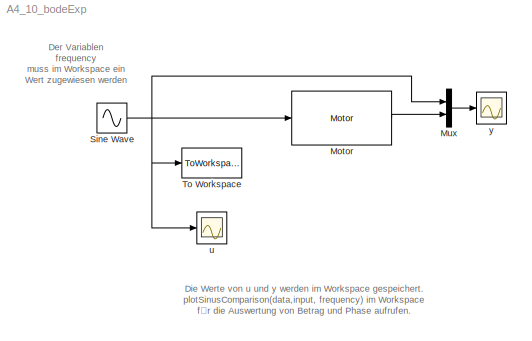
MODEL A4_10_bodeExp
KIND model
BLOCK [Reference] Motor  REF=DCmotor_library/Motor
  Ports = [1, 1]
  SID = 204
  SourceBlock = DCmotor_library/Motor
  motoridinput = 8
  name_signal = Velocity
  ts = 10
BLOCK [Mux] Mux
  DisplayOption = bar
  Inputs = 2
  Ports = [2, 1]
  SID = 209
BLOCK [Sin] Sine Wave
  Amplitude = 2
  Bias = 3
  Frequency = frequency
  Ports = [0, 1]
  SID = 197
  SampleTime = 0
BLOCK [ToWorkspace] To Workspace
  MaxDataPoints = inf
  Ports = [1]
  SID = 198
  SampleTime = -1
  SaveFormat = Structure With Time
  VariableName = input
BLOCK [Scope] u
  DataFormat = StructureWithTime
  Floating = off
  NumInputPorts = 1
  Ports = [1]
  SID = 202
  SampleTime = 0
  SaveName = ScopeData2
  YMax = 11
  YMin = -0.5
BLOCK [Scope] y
  DataFormat = StructureWithTime
  Floating = off
  LimitDataPoints = off
  NumInputPorts = 1
  Ports = [1]
  SID = 203
  SampleTime = 0
  YMax = 110
ANNOTATION (root): Der Variablen\nfrequency\nmuss im Workspace ein\nWert zugewiesen werden
ANNOTATION (root): Die Werte von u und y werden im Workspace gespeichert.\nplotSinusComparison(data,input, frequency) im Workspace\nfür die Auswertung von Betrag und Phase aufrufen.
LINE Motor:1 -> Mux:2
LINE Mux:1 -> y:1
NET Sine Wave:1 -> Motor:1, Mux:1, To Workspace:1, u:1
note: NET lines group one-source signal fan-out (src -> all destinations, sorted); 1:1 wires keep LINE
